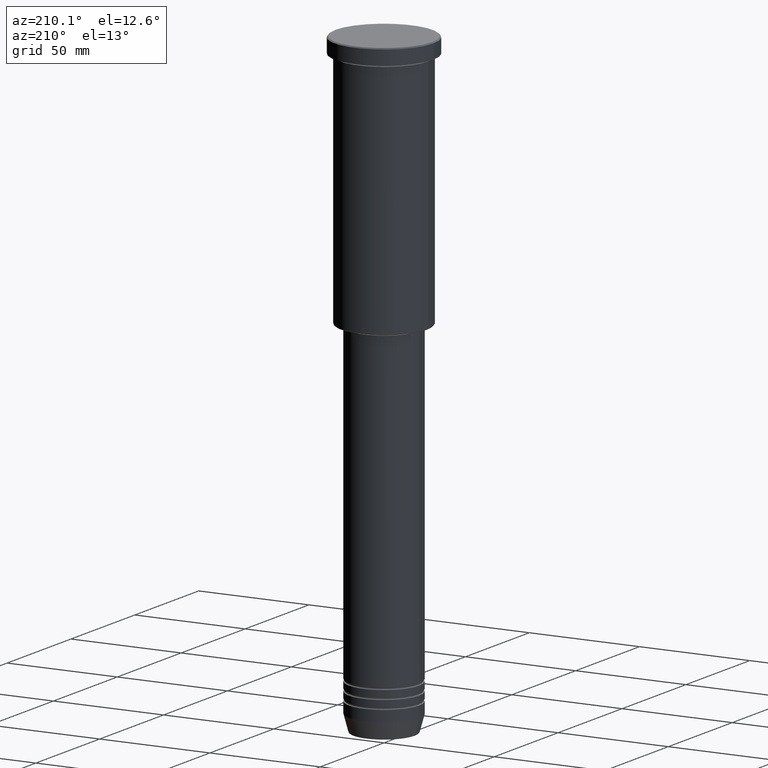
[diagram: clean part render]
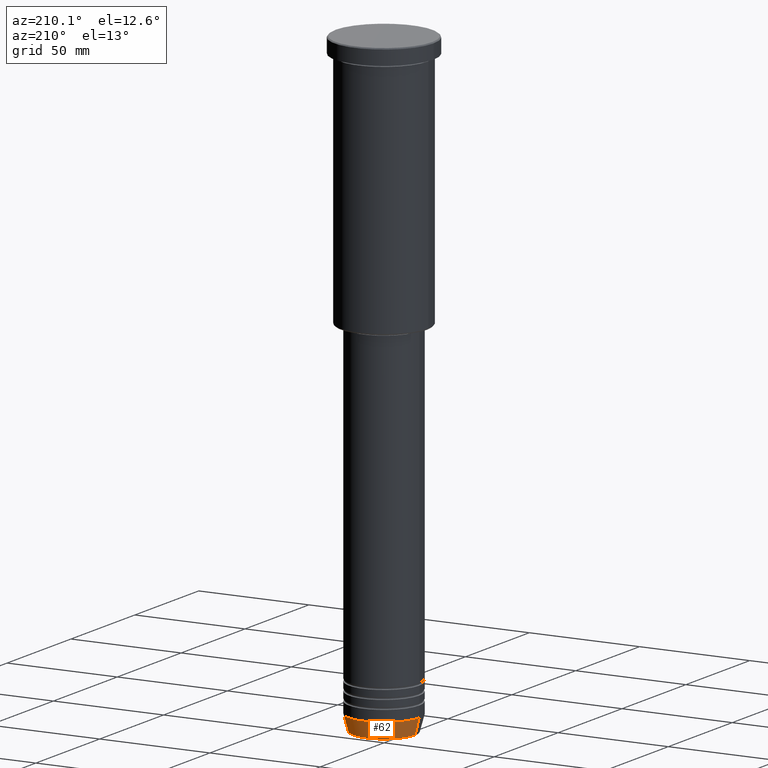
[diagram: same view with one face highlighted and labeled with its STEP entity id]
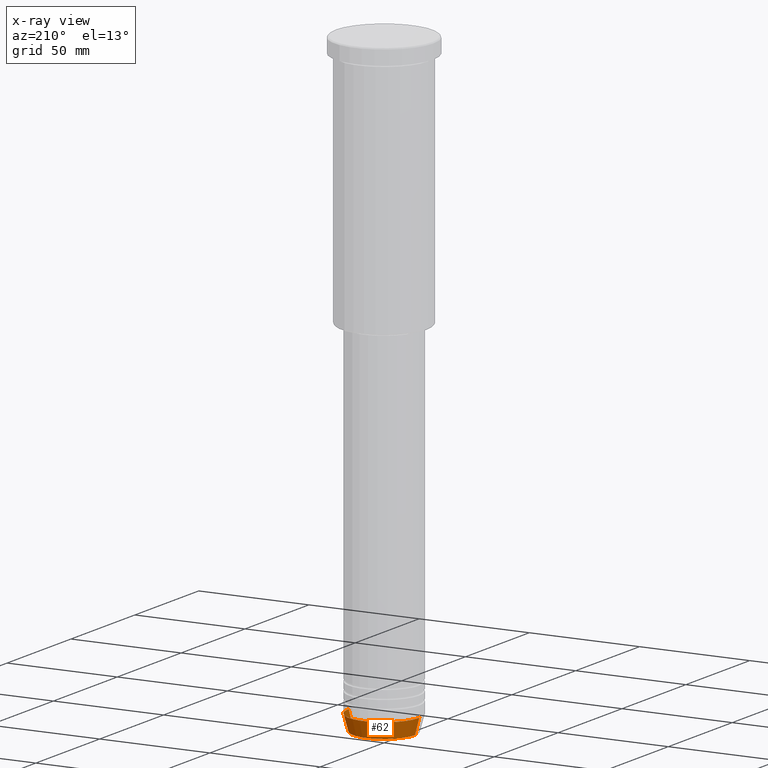
[diagram: x-ray of the same camera — body ghosted, the highlighted face saturated]
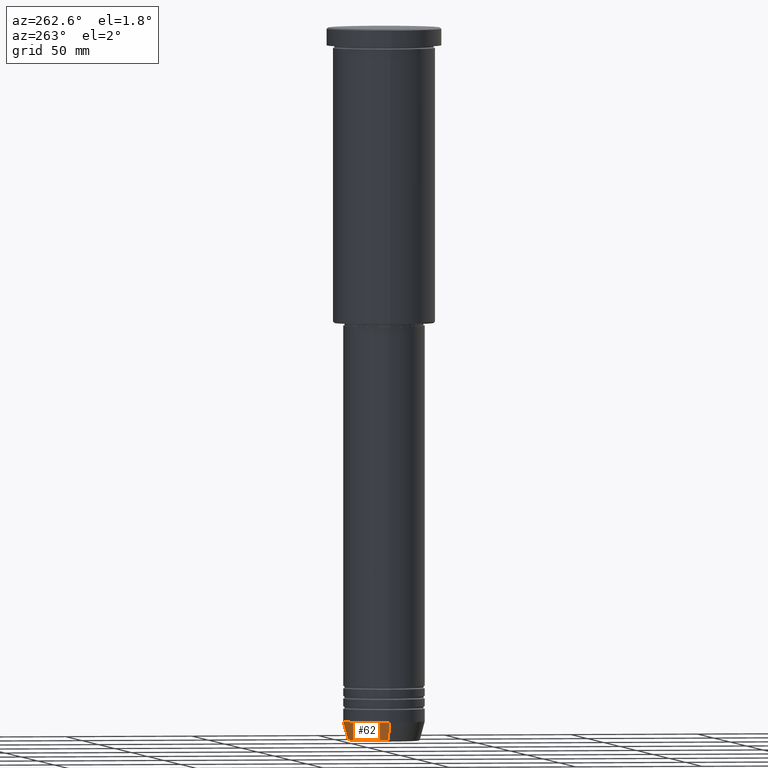
[diagram: same view with one face highlighted and labeled with its STEP entity id]
A machine part, auxiliary view. The second image highlights one B-rep face of the part: STEP entity #62.
The next image is the same camera in x-ray: the body ghosted, the highlighted face saturated — about 0% of this face is hidden behind the body in this view.
A second angle (auxiliary view) of the same face is appended — the face is thin or edge-on in the first view.
In plain terms, the highlighted conical surface has half-angle 15 deg.
Its self-contained STEP definition (entity closure, byte-faithful):
#8 = DIRECTION ( 'NONE',  ( -0.000000000000000000, -0.000000000000000000, 1.000000000000000000 ) ) ;
#25 = CONICAL_SURFACE ( 'NONE', #842, 16.00000000000000000, 0.2617993877991500740 ) ;
#62 = ADVANCED_FACE ( 'NONE', ( #627 ), #25, .T. ) ;
#67 = DIRECTION ( 'NONE',  ( -0.2588190451025213501, 3.169619151431772337E-17, 0.9659258262890680902 ) ) ;
#110 = EDGE_CURVE ( 'NONE', #997, #863, #286, .T. ) ;
#113 = DIRECTION ( 'NONE',  ( 1.000000000000000000, 0.000000000000000000, 0.000000000000000000 ) ) ;
#121 = ORIENTED_EDGE ( 'NONE', *, *, #438, .T. ) ;
#124 = EDGE_LOOP ( 'NONE', ( #900, #121, #595, #689 ) ) ;
#138 = VECTOR ( 'NONE', #735, 1000.000000000000000 ) ;
#156 = CIRCLE ( 'NONE', #1036, 16.00000000000000000 ) ;
#182 = CARTESIAN_POINT ( 'NONE',  ( 0.000000000000000000, 0.000000000000000000, -272.5000000000000000 ) ) ;
#198 = CIRCLE ( 'NONE', #952, 14.08968047592161632 ) ;
#286 = LINE ( 'NONE', #448, #138 ) ;
#287 = EDGE_CURVE ( 'NONE', #997, #982, #198, .T. ) ;
#313 = EDGE_CURVE ( 'NONE', #863, #568, #156, .T. ) ;
#330 = CARTESIAN_POINT ( 'NONE',  ( 0.000000000000000000, 0.000000000000000000, -272.5000000000000000 ) ) ;
#333 = VECTOR ( 'NONE', #67, 1000.000000000000000 ) ;
#364 = DIRECTION ( 'NONE',  ( 1.000000000000000000, 0.000000000000000000, 0.000000000000000000 ) ) ;
#419 = DIRECTION ( 'NONE',  ( 1.000000000000000000, 0.000000000000000000, 0.000000000000000000 ) ) ;
#438 = EDGE_CURVE ( 'NONE', #982, #568, #696, .T. ) ;
#447 = CARTESIAN_POINT ( 'NONE',  ( 0.000000000000000000, 0.000000000000000000, -279.6294095225512706 ) ) ;
#448 = CARTESIAN_POINT ( 'NONE',  ( 16.00000000000000000, 0.000000000000000000, -272.5000000000000000 ) ) ;
#522 = CARTESIAN_POINT ( 'NONE',  ( -16.00000000000000000, 1.959434878635765131E-15, -272.5000000000000000 ) ) ;
#568 = VERTEX_POINT ( 'NONE', #522 ) ;
#569 = CARTESIAN_POINT ( 'NONE',  ( 16.00000000000000000, 0.000000000000000000, -272.5000000000000000 ) ) ;
#595 = ORIENTED_EDGE ( 'NONE', *, *, #313, .F. ) ;
#627 = FACE_OUTER_BOUND ( 'NONE', #124, .T. ) ;
#689 = ORIENTED_EDGE ( 'NONE', *, *, #110, .F. ) ;
#696 = LINE ( 'NONE', #1159, #333 ) ;
#735 = DIRECTION ( 'NONE',  ( 0.2588190451025213501, 0.000000000000000000, 0.9659258262890680902 ) ) ;
#774 = CARTESIAN_POINT ( 'NONE',  ( -14.08968047592161632, 1.842461544110200874E-15, -279.6294095225512706 ) ) ;
#806 = DIRECTION ( 'NONE',  ( -0.000000000000000000, -0.000000000000000000, 1.000000000000000000 ) ) ;
#842 = AXIS2_PLACEMENT_3D ( 'NONE', #182, #8, #113 ) ;
#863 = VERTEX_POINT ( 'NONE', #569 ) ;
#900 = ORIENTED_EDGE ( 'NONE', *, *, #287, .T. ) ;
#952 = AXIS2_PLACEMENT_3D ( 'NONE', #447, #806, #364 ) ;
#982 = VERTEX_POINT ( 'NONE', #774 ) ;
#997 = VERTEX_POINT ( 'NONE', #1046 ) ;
#1036 = AXIS2_PLACEMENT_3D ( 'NONE', #330, #1122, #419 ) ;
#1046 = CARTESIAN_POINT ( 'NONE',  ( 14.08968047592161632, 0.000000000000000000, -279.6294095225512706 ) ) ;
#1122 = DIRECTION ( 'NONE',  ( -0.000000000000000000, -0.000000000000000000, 1.000000000000000000 ) ) ;
#1159 = CARTESIAN_POINT ( 'NONE',  ( -16.00000000000000000, 1.959434878635765131E-15, -272.5000000000000000 ) ) ;